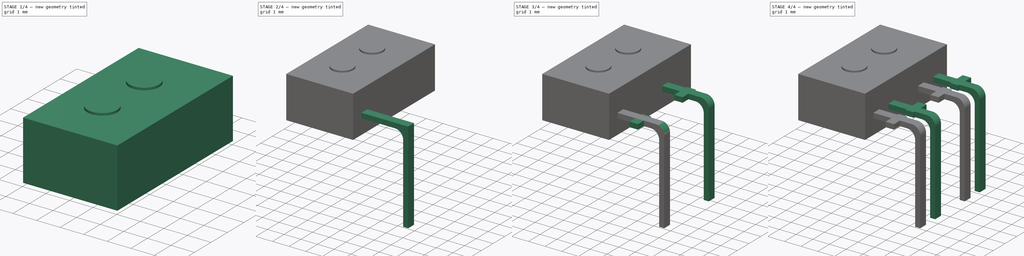
[diagram: build sequence overview — one tinted view per stage of 4, left to right]
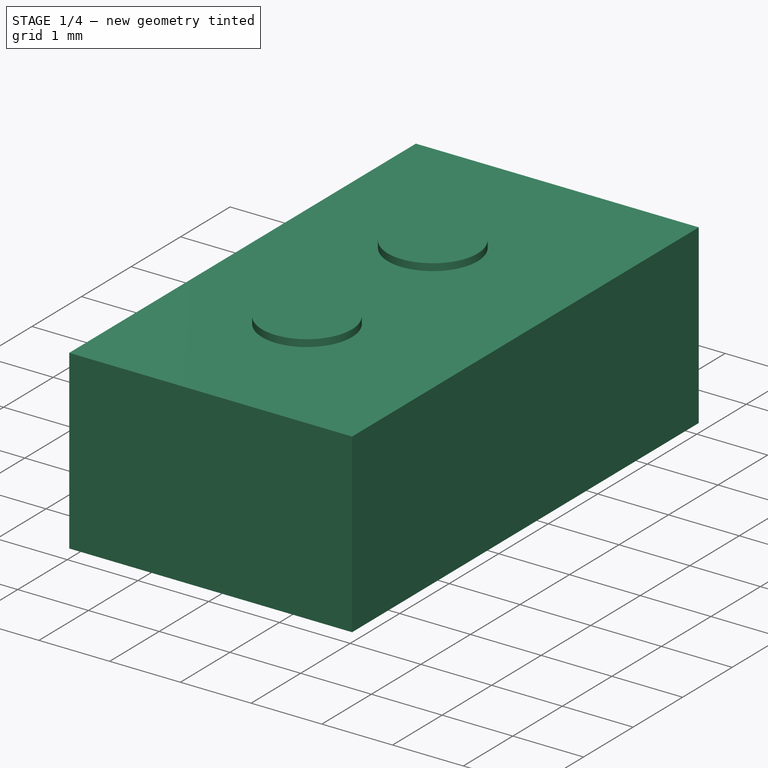
[diagram: stage 1 of 4 — iso view after this stage's code; geometry added in this stage tinted green]
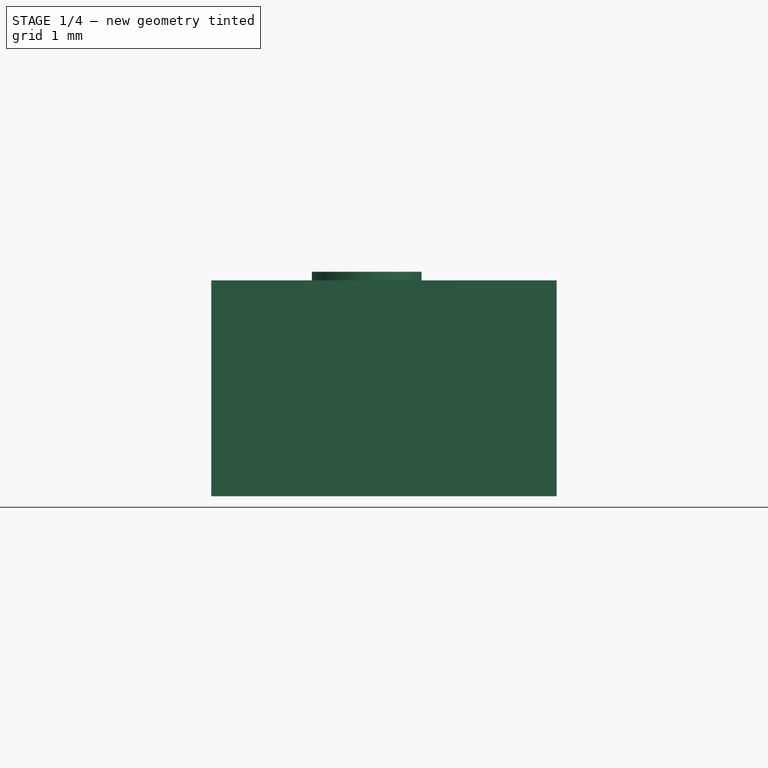
[diagram: stage 1 of 4 — front view after this stage's code; geometry added in this stage tinted green]
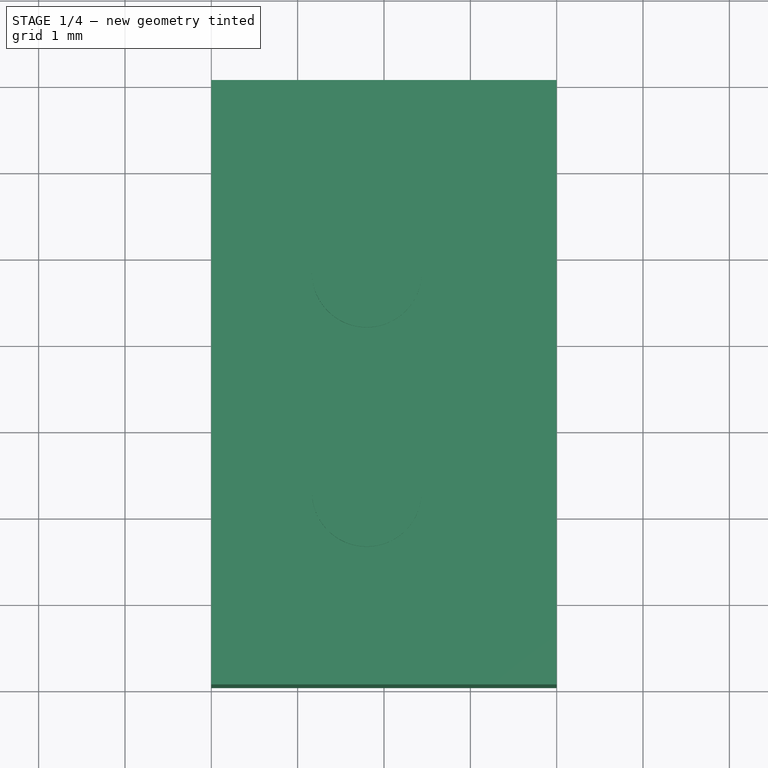
[diagram: stage 1 of 4 — top view after this stage's code; geometry added in this stage tinted green]
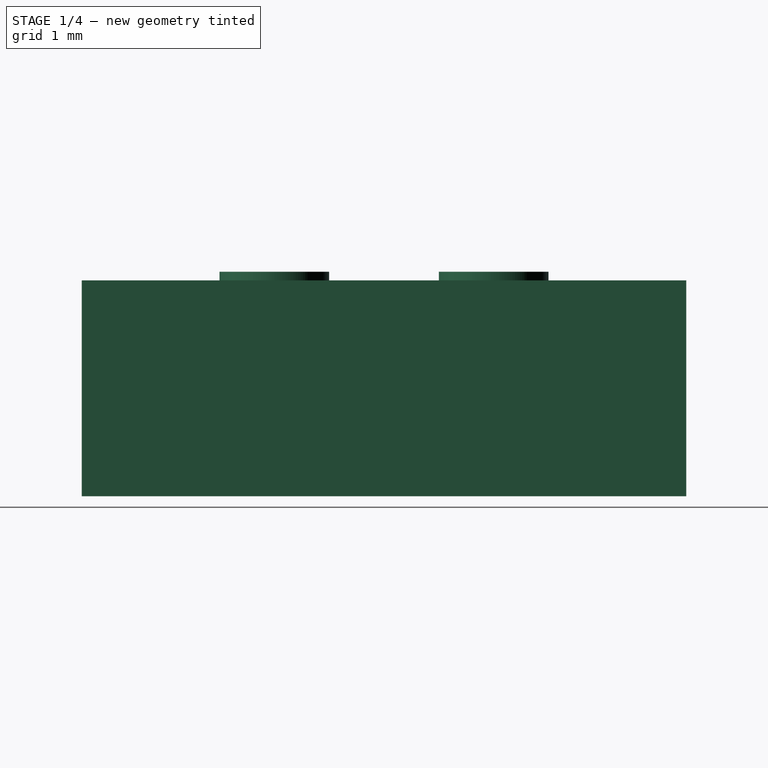
[diagram: stage 1 of 4 — right view after this stage's code; geometry added in this stage tinted green]
FCSTD DOCUMENT  (FreeCAD 0.16R6706 (Git))
Label: TCRT1000
License: All rights reserved
LicenseURL: http://en.wikipedia.org/wiki/All_rights_reserved
objects: Sketcher::SketchObject×5, PartDesign::Pad×5, PartDesign::Fillet×2, Part::FeaturePython×2, Part::Mirroring×1
note: 20 computed .brp shape members not serialized (recipe doc carries the construction recipe); baked Part::Feature solids carry a one-line shape summary decoded from their .brp

FEATURE [Sketcher::SketchObject] Sketch003
  sketch-geometry (4):
    g0: LineSegment StartX=-4 StartY=6.04 StartZ=0 EndX=0 EndY=6.04 EndZ=0
    g1: LineSegment StartX=0 StartY=6.04 StartZ=0 EndX=0 EndY=-0.96 EndZ=0
    g2: LineSegment StartX=0 StartY=-0.96 StartZ=0 EndX=-4 EndY=-0.96 EndZ=0
    g3: LineSegment StartX=-4 StartY=-0.96 StartZ=0 EndX=-4 EndY=6.04 EndZ=0
  constraints (12):
    c: Coincident(g0,g1)
    c: Coincident(g1,g2)
    c: Coincident(g2,g3)
    c: Coincident(g3,g0)
    c: Horizontal(g0)
    c: Horizontal(g2)
    c: Vertical(g1)
    c: Vertical(g3)
    c: PointOnObject(g1,g-2)
    c: DistanceY(g1,g-1) = 0.96
    c: DistanceY(g1,g0) = 7
    c: DistanceX(g0,g0) = 4
FEATURE [PartDesign::Pad] Pad003
  Length = 1.45
  Length2 = 1.05
  Sketch = -> Sketch003
  Type = 4
FEATURE [Sketcher::SketchObject] Sketch004
  ExternalGeometry = -> [Pad003]
  Placement = pos=(0,0,1.45) rot=(0,0,1;0rad)
  Support = -> Pad003 [Face6]
  sketch-geometry (3):
    g0: Circle CenterX=-2.2 CenterY=1.27 CenterZ=0 NormalX=0 NormalY=0 NormalZ=1 Radius=0.635
    g1: Circle CenterX=-2.2 CenterY=3.81 CenterZ=0 NormalX=0 NormalY=0 NormalZ=1 Radius=0.635
    g2: LineSegment [constr] StartX=-2.2 StartY=1.27 StartZ=0 EndX=-2.2 EndY=5.72392 EndZ=0
  constraints (8):
    c: Equal(g1,g0)
    c: DistanceX(g0,g-3) = 2.2
    c: DistanceY(g0,g1) = 2.54
    c: Coincident(g2,g0)
    c: Vertical(g2)
    c: PointOnObject(g1,g2)
    c: Radius(g0) = 0.635
    c: DistanceY(g-3,g0) = 2.23
FEATURE [PartDesign::Pad] Pad004
  Length = 0.1
  Length2 = 100
  Sketch = -> Sketch004
  Type = 0
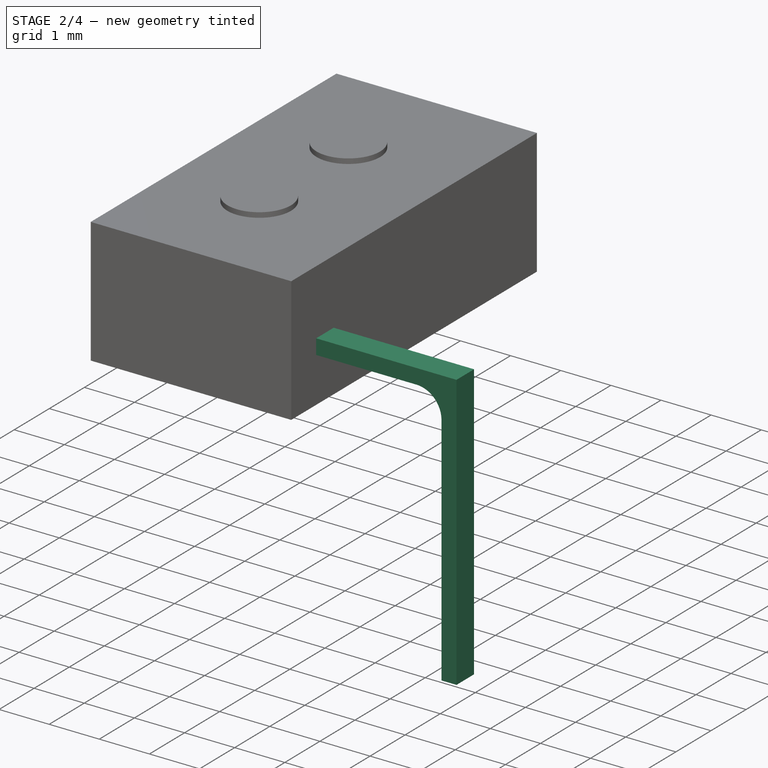
[diagram: stage 2 of 4 — iso view after this stage's code; geometry added in this stage tinted green]
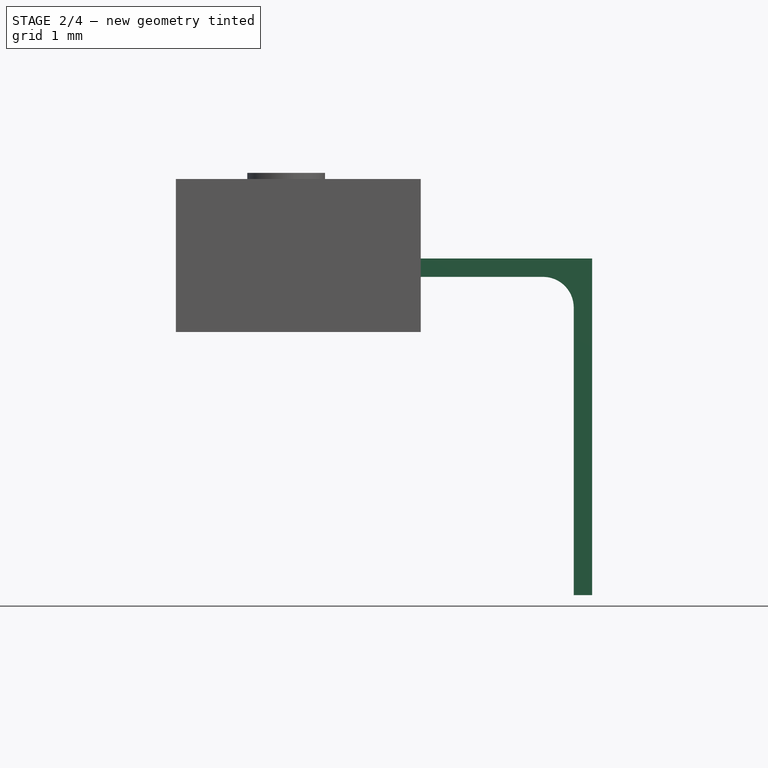
[diagram: stage 2 of 4 — front view after this stage's code; geometry added in this stage tinted green]
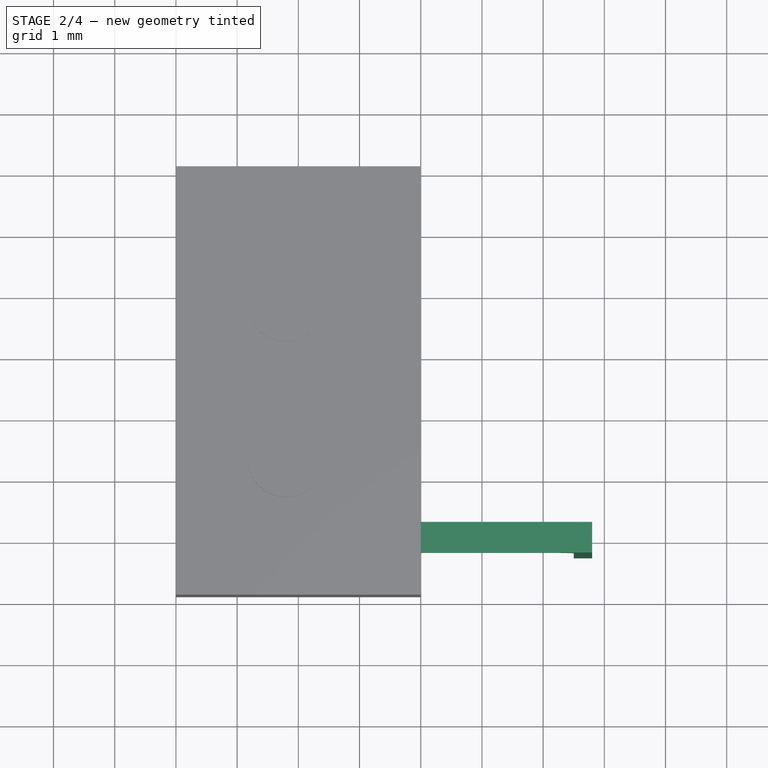
[diagram: stage 2 of 4 — top view after this stage's code; geometry added in this stage tinted green]
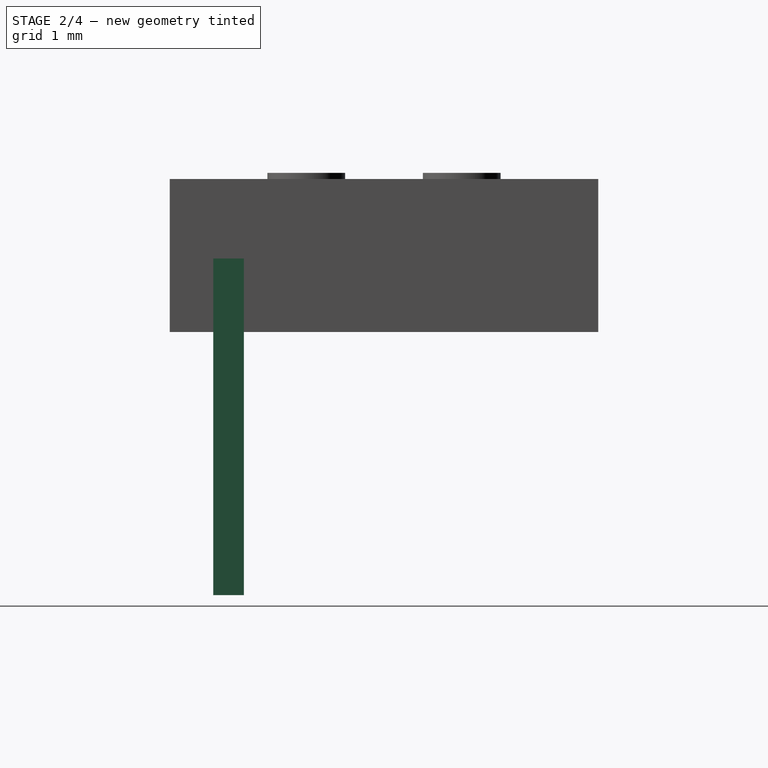
[diagram: stage 2 of 4 — right view after this stage's code; geometry added in this stage tinted green]
FEATURE [Sketcher::SketchObject] Sketch
  Placement = pos=(0,0,0) rot=(0.57735,0.57735,0.57735;2.0944rad)
  sketch-geometry (4):
    g0: LineSegment StartX=-0.25 StartY=0.15 StartZ=0 EndX=0.25 EndY=0.15 EndZ=0
    g1: LineSegment StartX=0.25 StartY=0.15 StartZ=0 EndX=0.25 EndY=-0.15 EndZ=0
    g2: LineSegment StartX=0.25 StartY=-0.15 StartZ=0 EndX=-0.25 EndY=-0.15 EndZ=0
    g3: LineSegment StartX=-0.25 StartY=-0.15 StartZ=0 EndX=-0.25 EndY=0.15 EndZ=0
  constraints (12):
    c: Coincident(g0,g1)
    c: Coincident(g1,g2)
    c: Coincident(g2,g3)
    c: Coincident(g3,g0)
    c: Horizontal(g0)
    c: Horizontal(g2)
    c: Vertical(g1)
    c: Vertical(g3)
    c: Symmetric(g0,g0,g-2)
    c: Symmetric(g0,g2,g-1)
    c: DistanceX(g2,g2) = 0.5
    c: DistanceY(g1,g1) = 0.3
FEATURE [PartDesign::Pad] Pad
  Length = 2.8
  Length2 = 100
  Placement = pos=(0,0,0) rot=(0.57735,0.57735,0.57735;2.0944rad)
  Sketch = -> Sketch
  Type = 0
FEATURE [Sketcher::SketchObject] Sketch001
  ExternalGeometry = -> [Pad]
  Placement = pos=(0,0,-0.15) rot=(0.707107,0.707107,0;3.14159rad)
  Support = -> Pad [Face3]
  sketch-geometry (4):
    g0: LineSegment StartX=0.25 StartY=2.8 StartZ=0 EndX=-0.25 EndY=2.8 EndZ=0
    g1: LineSegment StartX=-0.25 StartY=2.8 StartZ=0 EndX=-0.25 EndY=2.5 EndZ=0
    g2: LineSegment StartX=-0.25 StartY=2.5 StartZ=0 EndX=0.25 EndY=2.5 EndZ=0
    g3: LineSegment StartX=0.25 StartY=2.5 StartZ=0 EndX=0.25 EndY=2.8 EndZ=0
  constraints (11):
    c: Coincident(g0,g1)
    c: Coincident(g1,g2)
    c: Coincident(g2,g3)
    c: Coincident(g3,g0)
    c: Horizontal(g0)
    c: Horizontal(g2)
    c: Vertical(g1)
    c: Vertical(g3)
    c: Coincident(g0,g-4)
    c: Coincident(g0,g-3)
    c: DistanceY(g1,g1) = 0.3
FEATURE [PartDesign::Pad] Pad001
  Length = 5.2
  Length2 = 100
  Placement = pos=(0,0,0) rot=(0.57735,0.57735,0.57735;2.0944rad)
  Sketch = -> Sketch001
  Type = 0
FEATURE [PartDesign::Fillet] Fillet
  Base = -> Pad001 [Edge9]
  Placement = pos=(0,0,0) rot=(0.57735,0.57735,0.57735;2.0944rad)
  Radius = 0.5
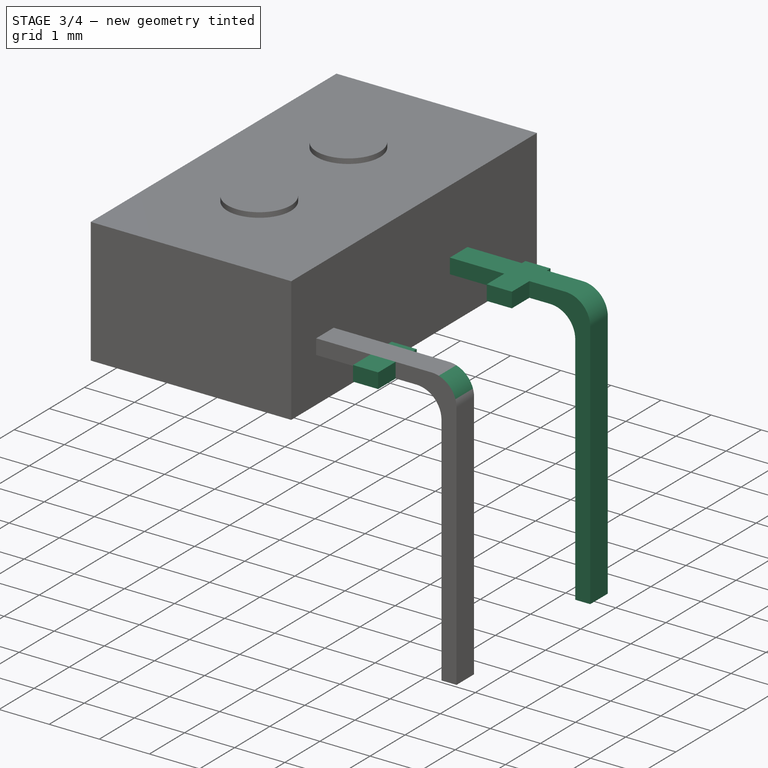
[diagram: stage 3 of 4 — iso view after this stage's code; geometry added in this stage tinted green]
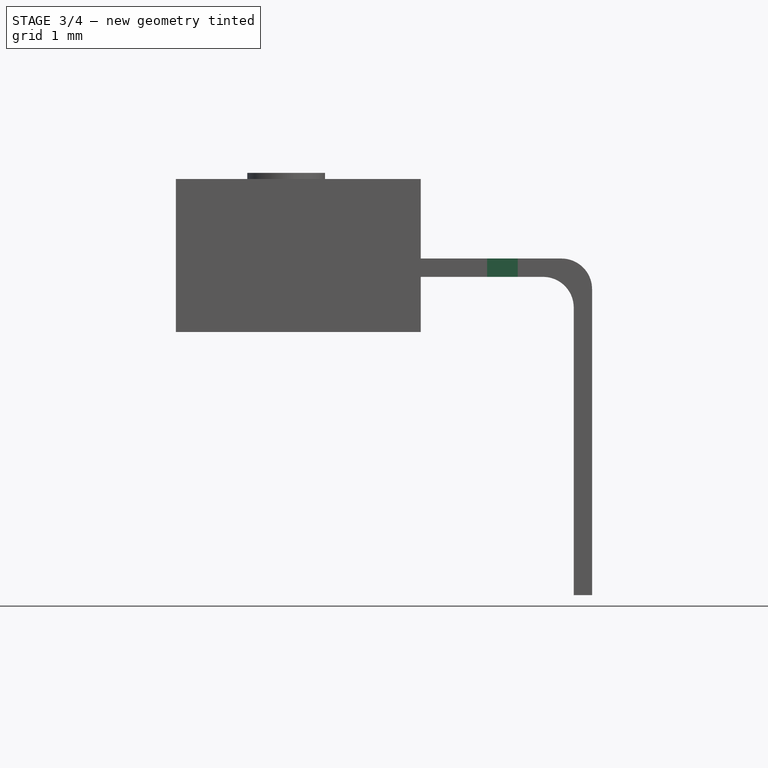
[diagram: stage 3 of 4 — front view after this stage's code; geometry added in this stage tinted green]
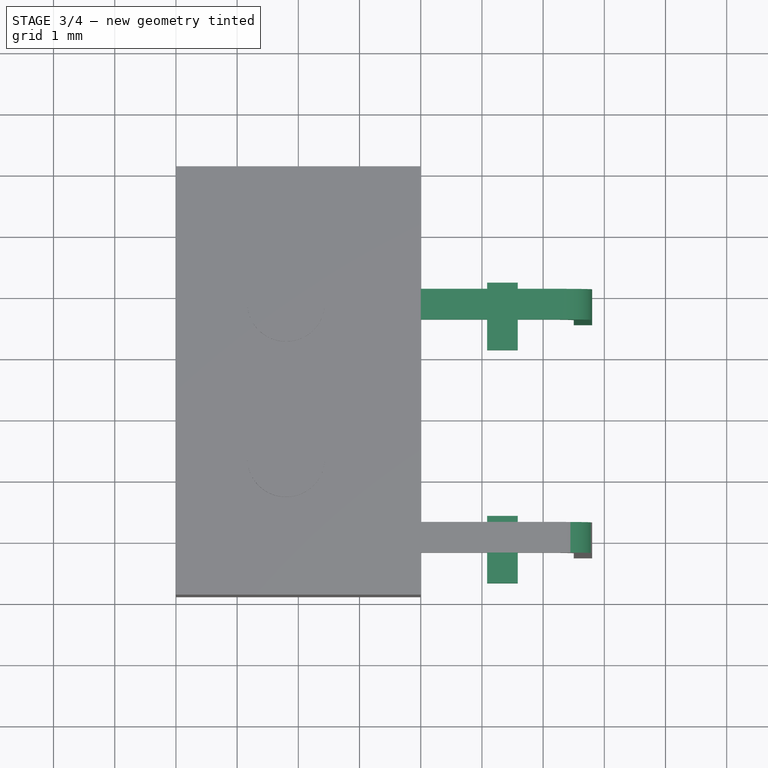
[diagram: stage 3 of 4 — top view after this stage's code; geometry added in this stage tinted green]
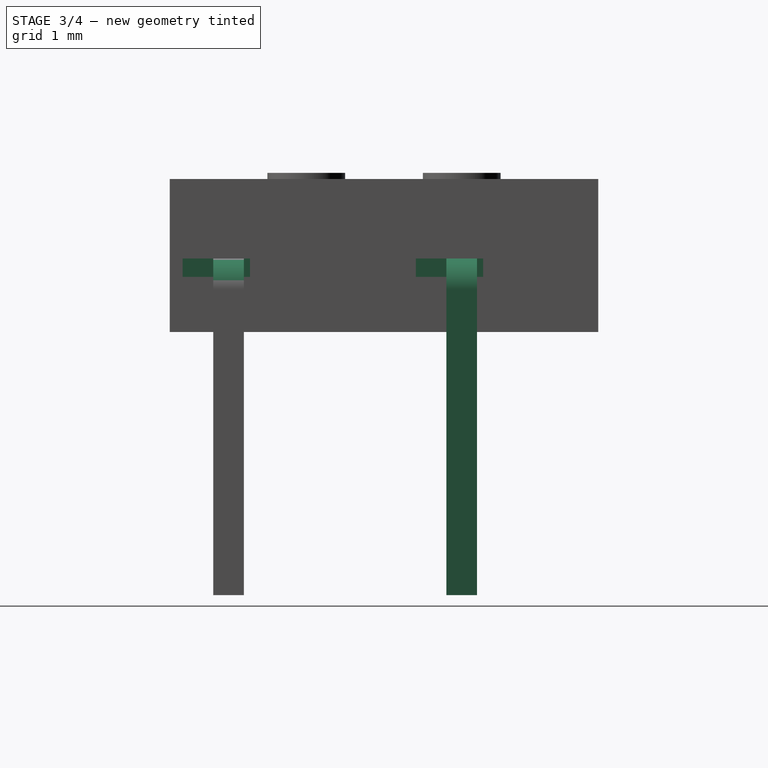
[diagram: stage 3 of 4 — right view after this stage's code; geometry added in this stage tinted green]
FEATURE [PartDesign::Fillet] Fillet001
  Base = -> Fillet [Edge20]
  Placement = pos=(0,0,0) rot=(0.57735,0.57735,0.57735;2.0944rad)
  Radius = 0.5
FEATURE [Sketcher::SketchObject] Sketch002
  ExternalGeometry = -> [Fillet001]
  Placement = pos=(0,-0.25,0) rot=(0.57735,0.57735,-0.57735;2.0944rad)
  Support = -> Fillet001 [Face1]
  sketch-geometry (4):
    g0: LineSegment StartX=-0.15 StartY=1.08611 StartZ=0 EndX=0.15 EndY=1.08611 EndZ=0
    g1: LineSegment StartX=0.15 StartY=1.08611 StartZ=0 EndX=0.15 EndY=1.58611 EndZ=0
    g2: LineSegment StartX=0.15 StartY=1.58611 StartZ=0 EndX=-0.15 EndY=1.58611 EndZ=0
    g3: LineSegment StartX=-0.15 StartY=1.58611 StartZ=0 EndX=-0.15 EndY=1.08611 EndZ=0
  constraints (11):
    c: Coincident(g0,g1)
    c: Coincident(g1,g2)
    c: Coincident(g2,g3)
    c: Coincident(g3,g0)
    c: Horizontal(g0)
    c: Horizontal(g2)
    c: Vertical(g1)
    c: Vertical(g3)
    c: PointOnObject(g0,g-3)
    c: PointOnObject(g1,g-4)
    c: DistanceY(g1,g1) = 0.5
FEATURE [PartDesign::Pad] Pad002
  Length = 0.5
  Length2 = 0.6
  Placement = pos=(0,0,0) rot=(0.57735,0.57735,0.57735;2.0944rad)
  Sketch = -> Sketch002
  Type = 4
FEATURE [Part::FeaturePython] Array001  # Draft array (typed FeaturePython)
  Angle = 360
  ArrayType = 0
  Axis = (0,0,1)
  Base = -> Pad002
  Center = (0,0,0)
  Fuse = false
  IntervalAxis = (0,0,0)
  IntervalX = (1,0,0)
  IntervalY = (0,3.81,0)
  IntervalZ = (0,0,0)
  NumberPolar = 1
  NumberX = 1
  NumberY = 2
  NumberZ = 1
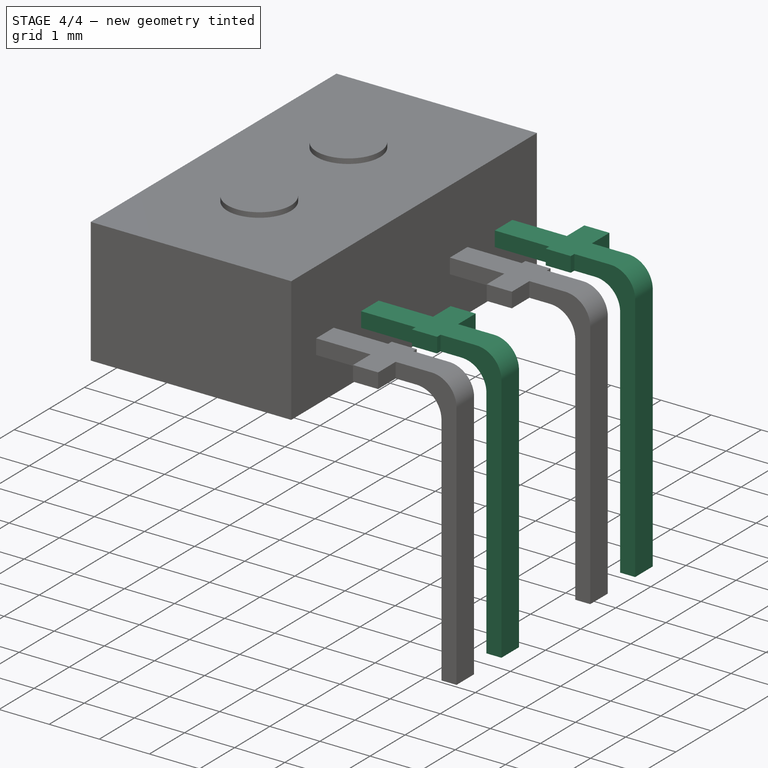
[diagram: stage 4 of 4 — iso view after this stage's code; geometry added in this stage tinted green]
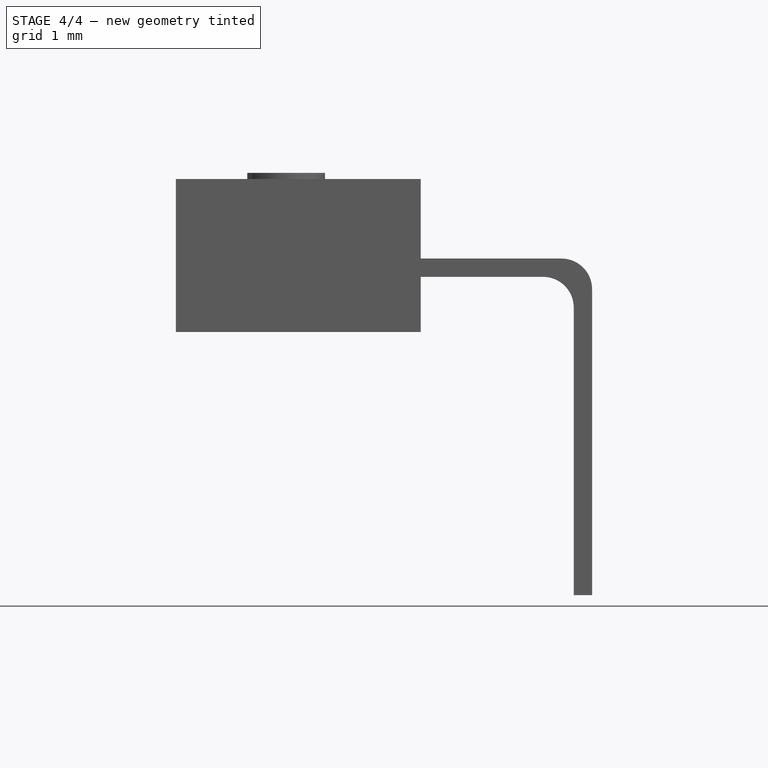
[diagram: stage 4 of 4 — front view after this stage's code; geometry added in this stage tinted green]
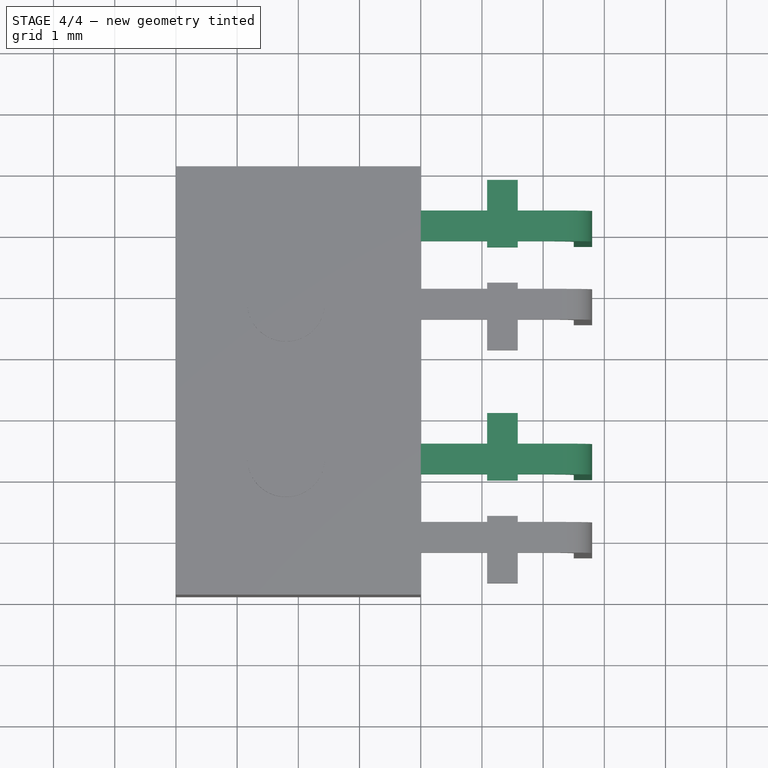
[diagram: stage 4 of 4 — top view after this stage's code; geometry added in this stage tinted green]
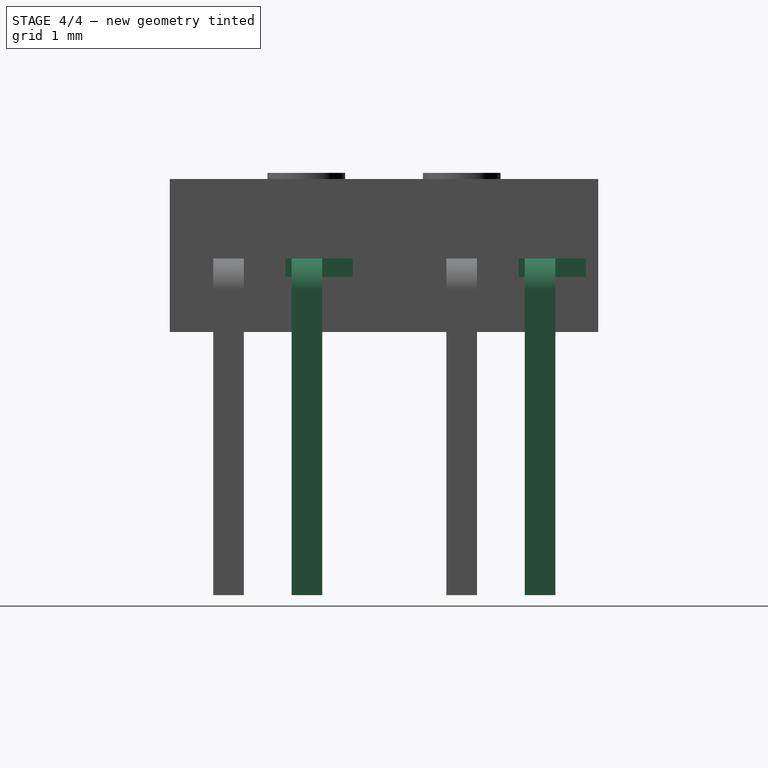
[diagram: stage 4 of 4 — right view after this stage's code; geometry added in this stage tinted green]
FEATURE [Part::Mirroring] mirror  label="Mirror of Pad002"
  Base = (0,0.64,-1)
  Normal = (0,-1,0)
  Source = -> Pad002
FEATURE [Part::FeaturePython] Array  # Draft array (typed FeaturePython)
  Angle = 360
  ArrayType = 0
  Axis = (0,0,1)
  Base = -> mirror
  Center = (0,0,0)
  Fuse = false
  IntervalAxis = (0,0,0)
  IntervalX = (1,0,0)
  IntervalY = (0,3.81,0)
  IntervalZ = (0,0,0)
  NumberPolar = 1
  NumberX = 1
  NumberY = 2
  NumberZ = 1
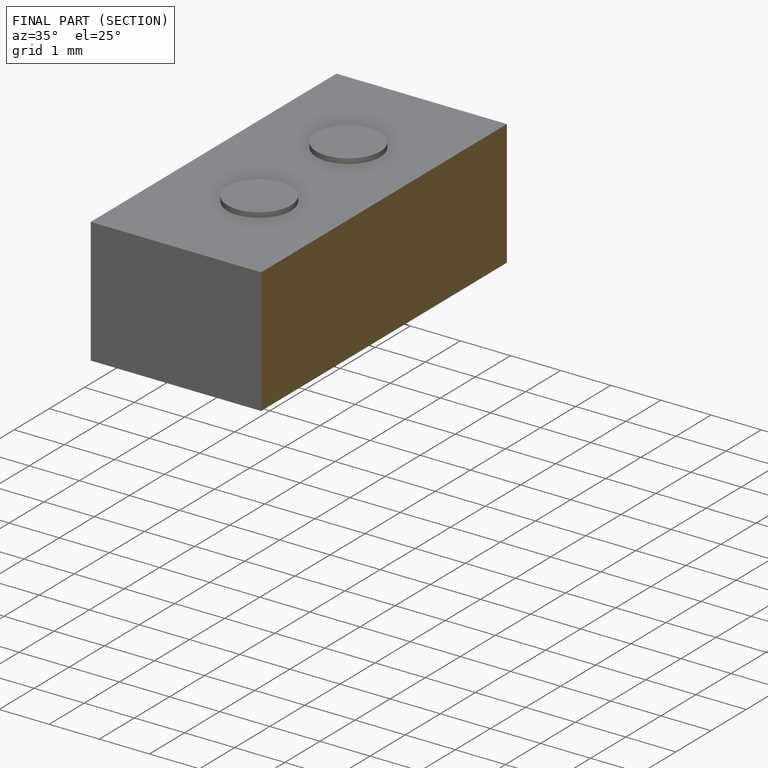
[diagram: finished part — half-section view (interior)]
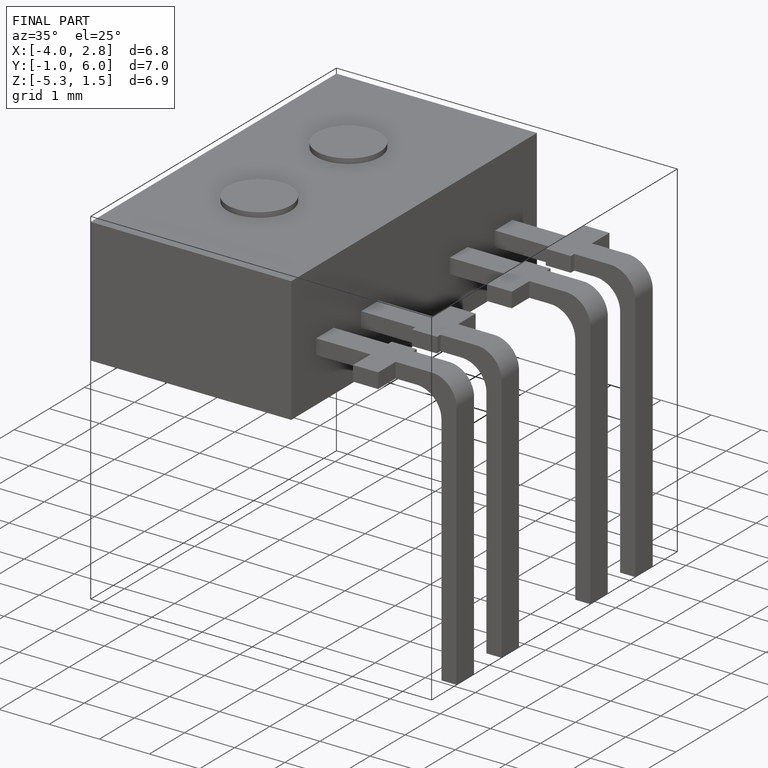
[diagram: finished part — iso view with bounding-box wireframe]
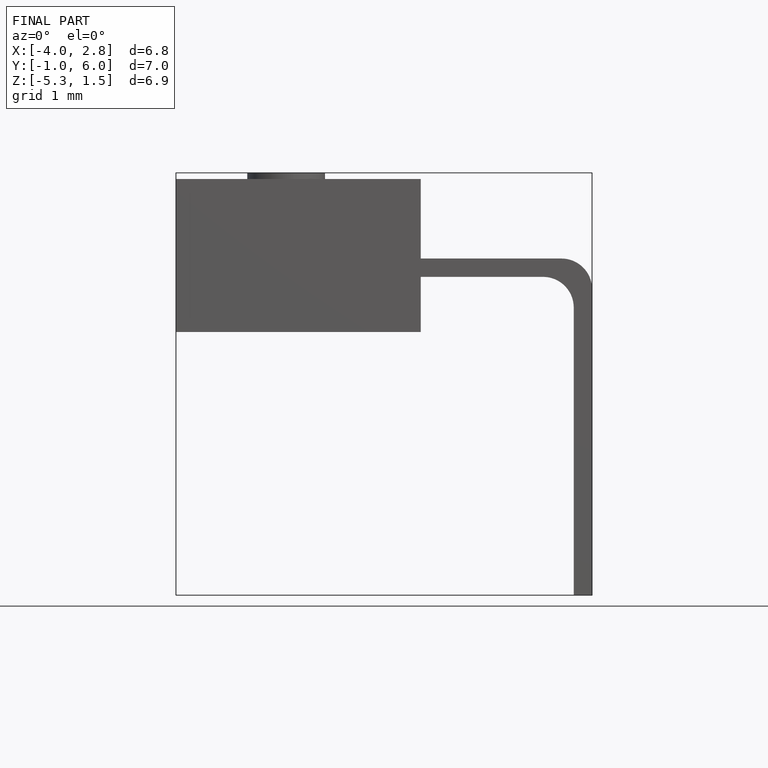
[diagram: finished part — front view with bounding-box wireframe]
